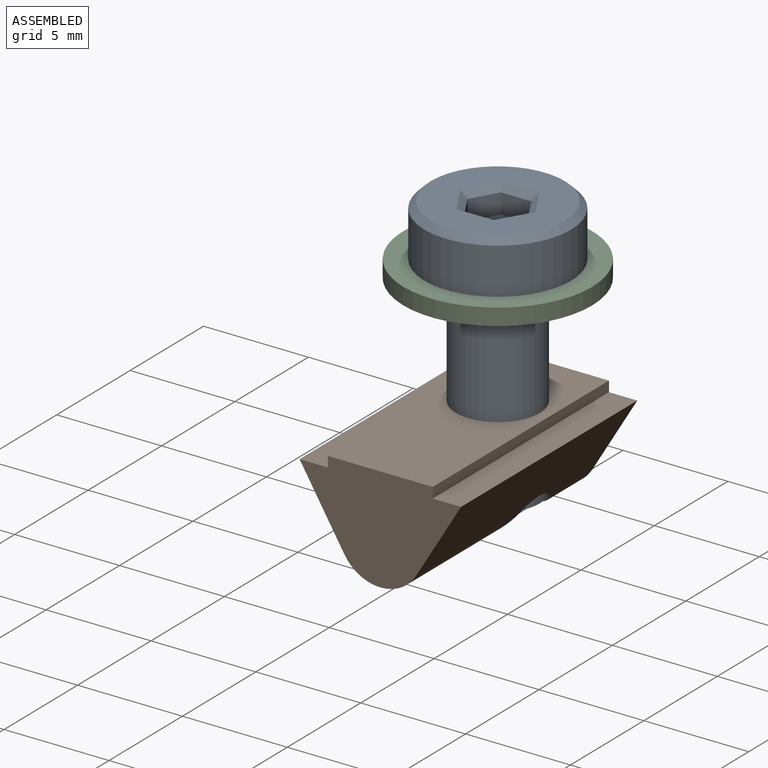
[diagram: assembled view]
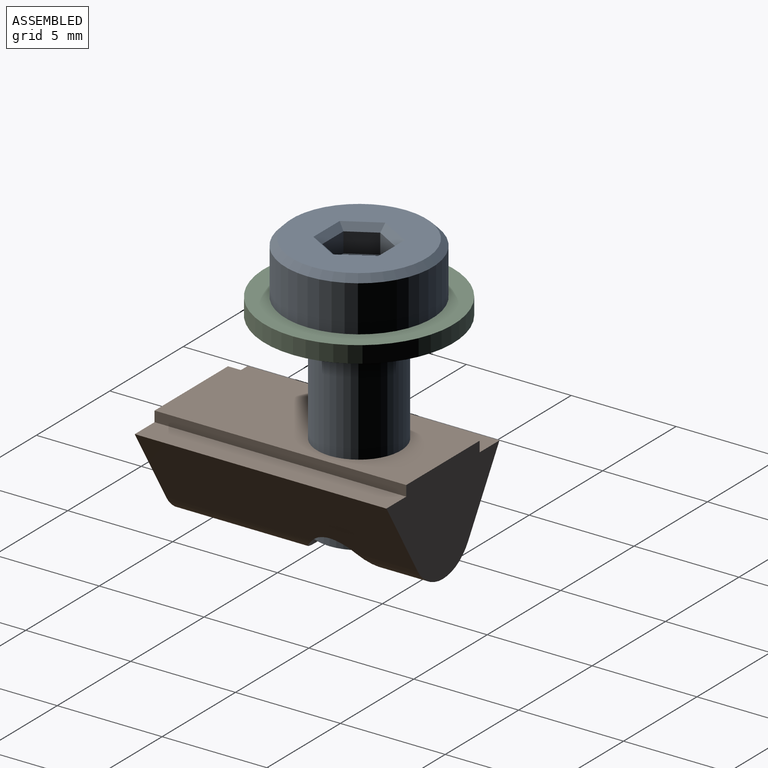
[diagram: assembled view, second angle]
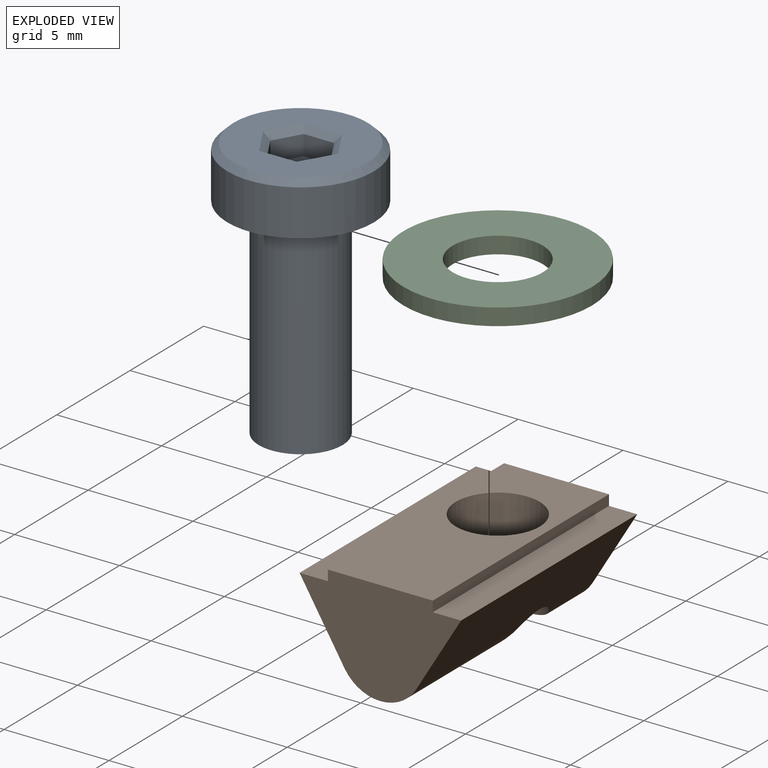
[diagram: exploded view]
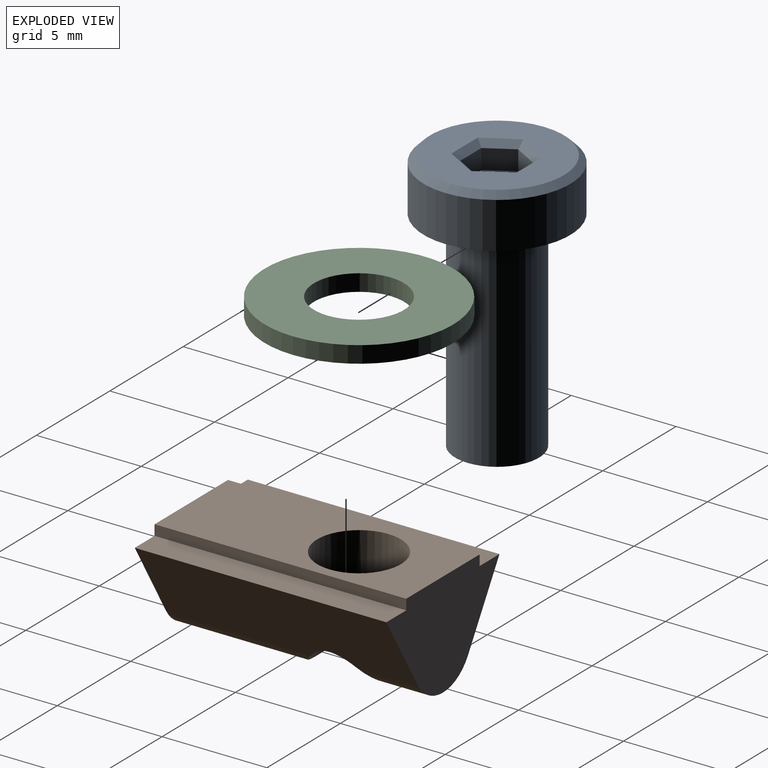
[diagram: exploded view, second angle]
ASSEMBLY  parts=3 mates=2
PART A: 19 faces, bbox 7x7x12.5 mm
  f0: cylinder r=3.5mm len=7mm, axis (0,0,1), area 48.4mm2, adj f1,f18
  f1: plane 7x7mm, normal (0,0,-1), area 25.9mm2, adj f0,f3
  f2: plane 6.4x6.4mm, normal (0,0,1), area 23.8mm2, adj f12,f13,f14,f15,f16,f17,f18
  f3: cylinder r=2mm len=10mm, axis (0,0,1), area 125.7mm2, adj f1,f4
  f4: plane 4x4mm, normal (0,0,-1), area 12.6mm2, adj f3
  f5: plane 1.44x0.95mm, normal (0,-1,0), area 1.4mm2, adj f6,f10,f11,f16
  f6: plane 1.25x0.95mm, normal (0.87,-0.5,0), area 1.4mm2, adj f5,f7,f11,f17
  f7: plane 1.25x0.95mm, normal (0.87,0.5,0), area 1.4mm2, adj f6,f8,f11,f15
  f8: plane 1.44x0.95mm, normal (0,1,0), area 1.4mm2, adj f7,f9,f11,f13
  f9: plane 1.25x0.95mm, normal (-0.87,0.5,0), area 1.4mm2, adj f8,f10,f11,f12
  f10: plane 1.25x0.95mm, normal (-0.87,-0.5,0), area 1.4mm2, adj f5,f9,f11,f14
  f11: plane 2.89x2.5mm, normal (0,0,1), area 5.4mm2, adj f5,f6,f7,f8,f9,f10
  f12: plane 1.55x1.07mm, normal (-0.61,0.35,0.71), area 0.7mm2, adj f2,f9,f13,f14
  f13: plane 1.79x0.3mm, normal (0,0.71,0.71), area 0.7mm2, adj f2,f8,f12,f15
  f14: plane 1.55x1.07mm, normal (-0.61,-0.35,0.71), area 0.7mm2, adj f2,f10,f12,f16
  f15: plane 1.55x1.07mm, normal (0.61,0.35,0.71), area 0.7mm2, adj f2,f7,f13,f17
  f16: plane 1.79x0.3mm, normal (0,-0.71,0.71), area 0.7mm2, adj f2,f5,f14,f17
  f17: plane 1.55x1.07mm, normal (0.61,-0.35,0.71), area 0.7mm2, adj f2,f6,f15,f16
  f18: cone r=3.5mm half-angle=45deg, axis (0,0,-1), area 8.9mm2, adj f0,f2
PART B: 12 faces, bbox 7.7x12x5 mm
  f0: cylinder r=2mm len=3.42mm, axis (0,1,0), area 9.6mm2, adj f2,f4,f10,f11
  f1: plane 12x1.35mm, normal (0,0,1), area 16.2mm2, adj f2,f8,f9,f10
  f2: plane 12x3.54mm, normal (-0.86,0,-0.52), area 48.8mm2, adj f0,f1,f3,f9,f10,f11
  f3: cylinder r=2mm len=6.96mm, axis (0,1,0), area 26mm2, adj f2,f4,f9,f11
  f4: plane 12x3.54mm, normal (0.86,0,-0.52), area 48.8mm2, adj f0,f3,f5,f9,f10,f11
  f5: plane 12x1.35mm, normal (0,0,1), area 16.2mm2, adj f4,f6,f9,f10
  f6: plane 12x0.5mm, normal (1,0,0), area 6mm2, adj f5,f7,f9,f10
  f7: plane 12x5mm, normal (0,0,1), area 47.4mm2, adj f6,f8,f9,f10,f11
  f8: plane 12x0.5mm, normal (-1,0,0), area 6mm2, adj f1,f7,f9,f10
  f9: plane 7.7x5mm, normal (0,-1,0), area 24.5mm2, adj f1,f2,f3,f4,f5,f6,f7,f8
  f10: plane 7.7x5mm, normal (0,1,0), area 24.5mm2, adj f0,f1,f2,f4,f5,f6,f7,f8
  f11: cylinder r=2mm len=5mm, axis (0,0,1), area 54.5mm2, adj f0,f2,f3,f4,f7
PART C: 4 faces, bbox 9x9x0.8 mm
  f0: cylinder r=2.15mm len=4.3mm, axis (0,0,-1), area 10.8mm2, adj f2,f3
  f1: cylinder r=4.5mm len=9mm, axis (0,0,-1), area 22.6mm2, adj f2,f3
  f2: plane 9x9mm, normal (0,0,1), area 49.1mm2, adj f0,f1
  f3: plane 9x9mm, normal (0,0,-1), area 49.1mm2, adj f0,f1
PLACE A t=(-14.09,-33.09,31.52)mm
PLACE B rot(axis=(0,0,1),0deg) t=(-14.09,-2.97,22.42)mm
PLACE C t=(-34.09,-6.97,28.22)mm
MATE fastened B.f11 <-> A.f0  axis (0,0,1) through (-14.09,-6.97,22.92)mm
MATE fastened C.f0 <-> A.f0  axis (0,0,1) through (-14.09,-6.97,29.02)mm
